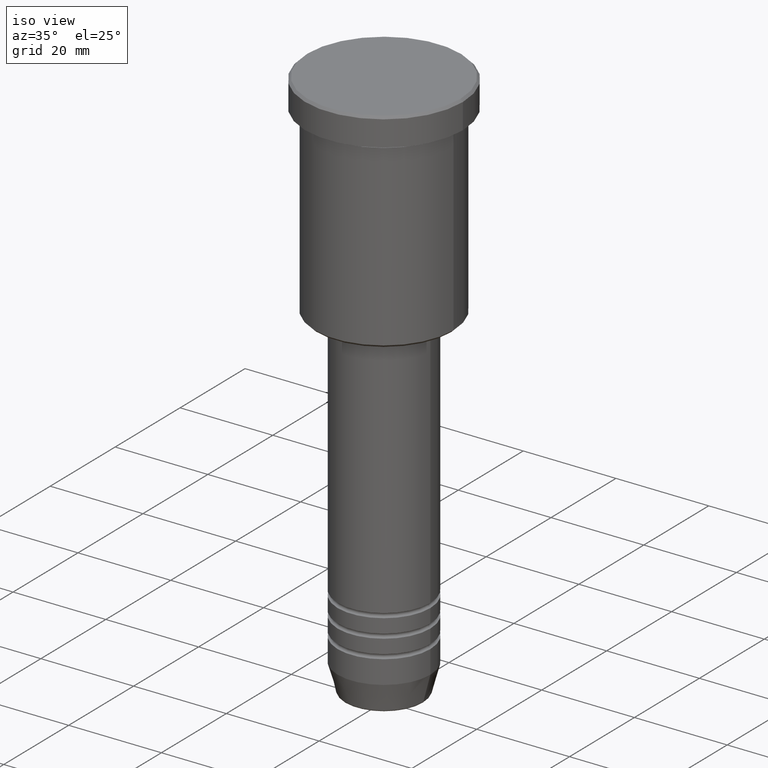
[diagram: clean part render]
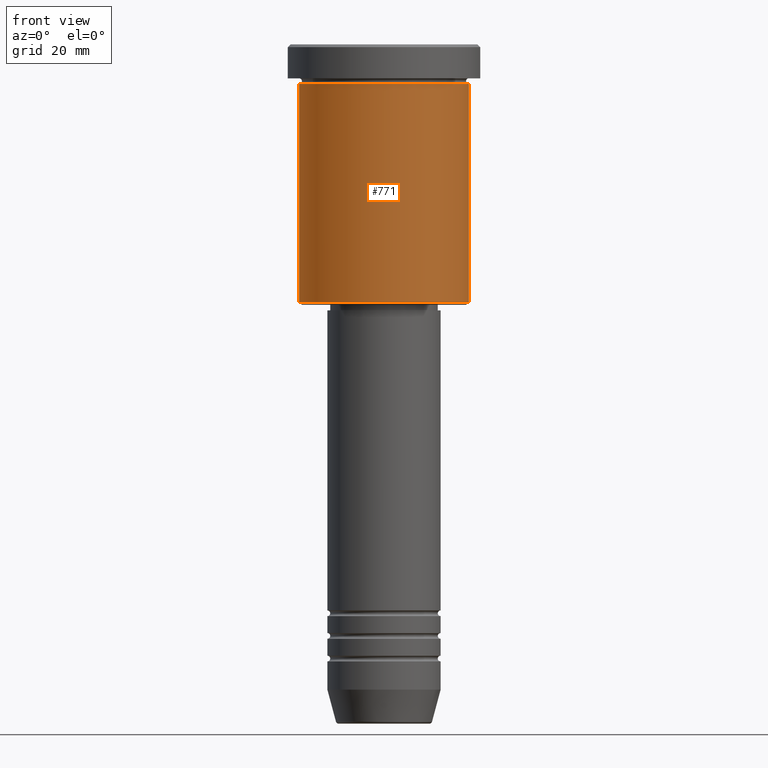
[diagram: tour spotlight — one face highlighted and labeled with its STEP entity id]
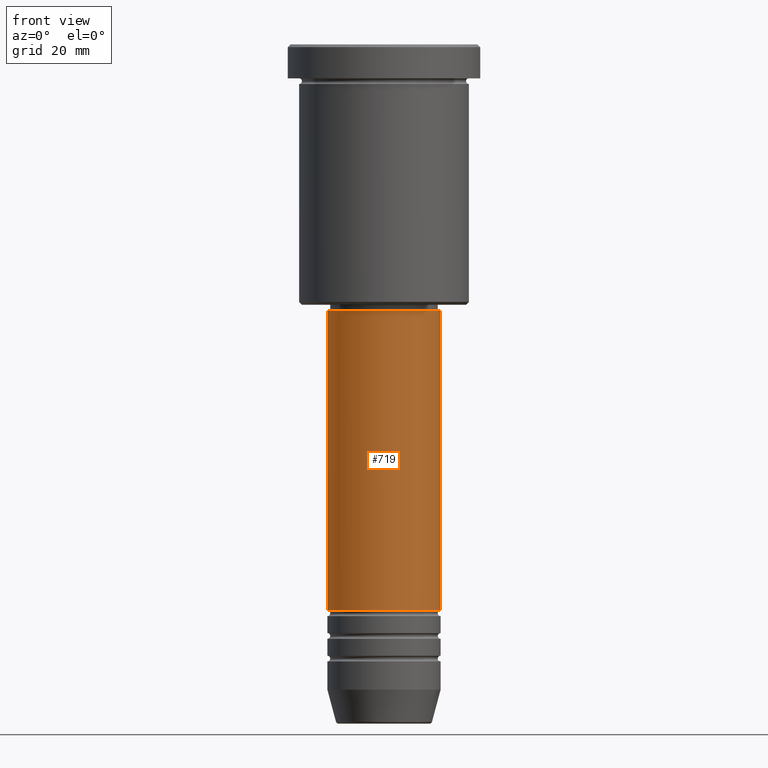
[diagram: tour spotlight — one face highlighted and labeled with its STEP entity id]
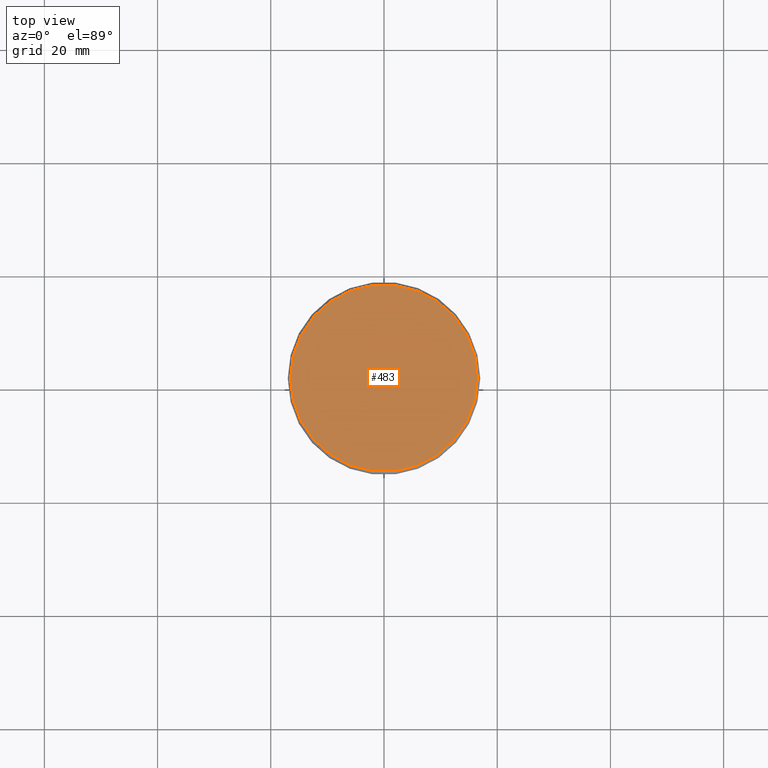
[diagram: tour spotlight — one face highlighted and labeled with its STEP entity id]
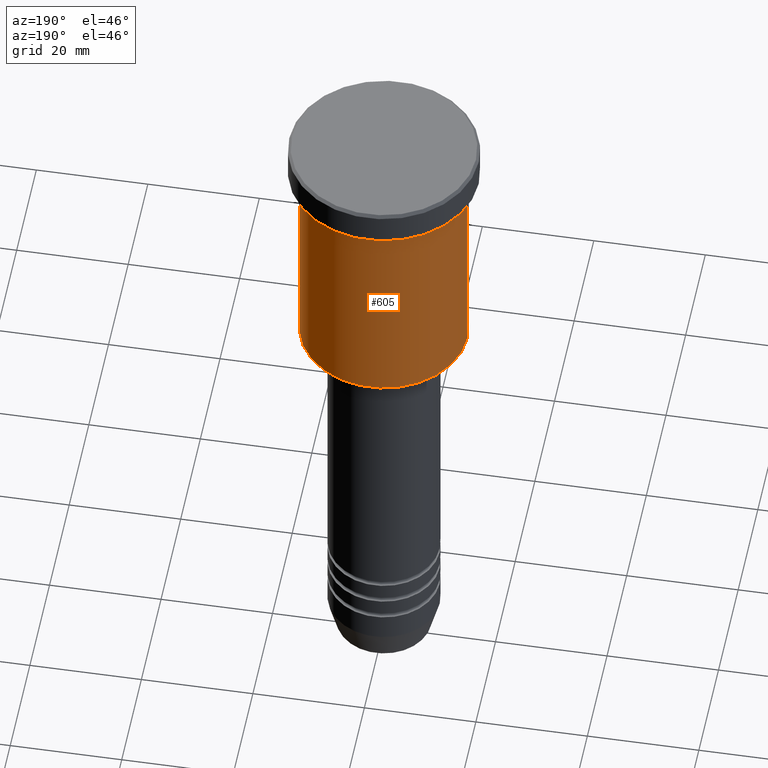
[diagram: tour spotlight — one face highlighted and labeled with its STEP entity id]
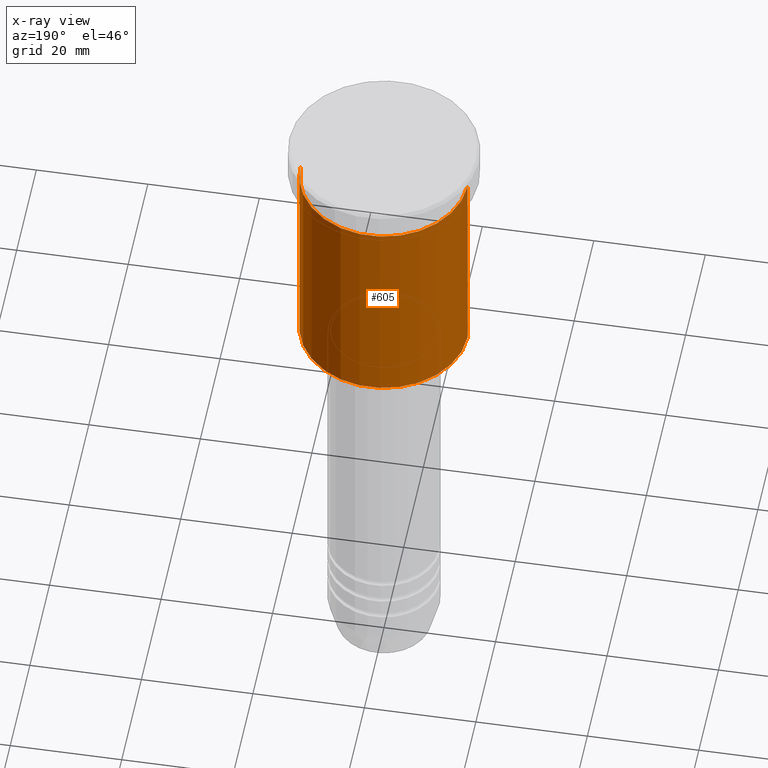
[diagram: x-ray of the same camera — body ghosted, this tour face saturated]
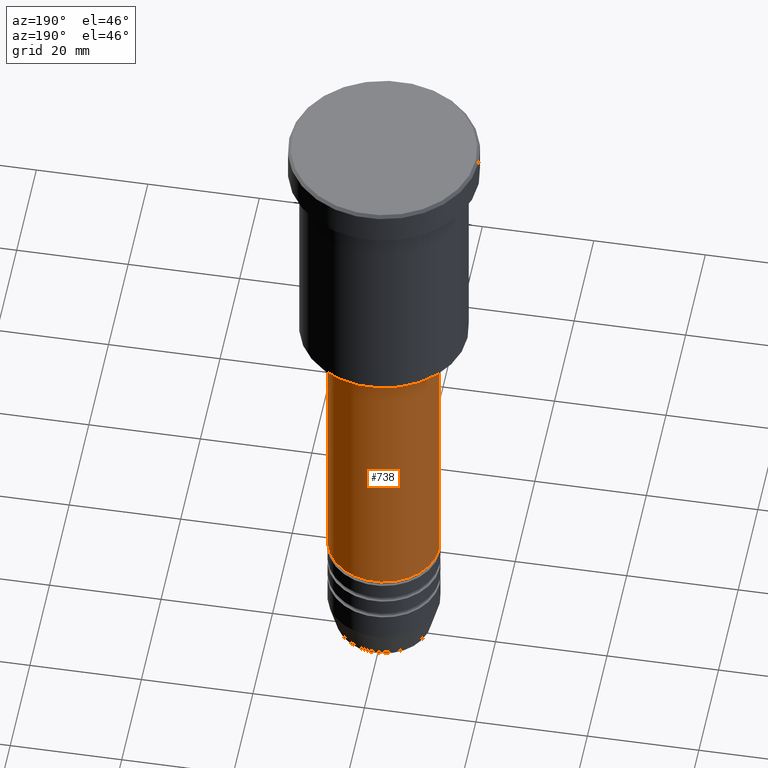
[diagram: tour spotlight — one face highlighted and labeled with its STEP entity id]
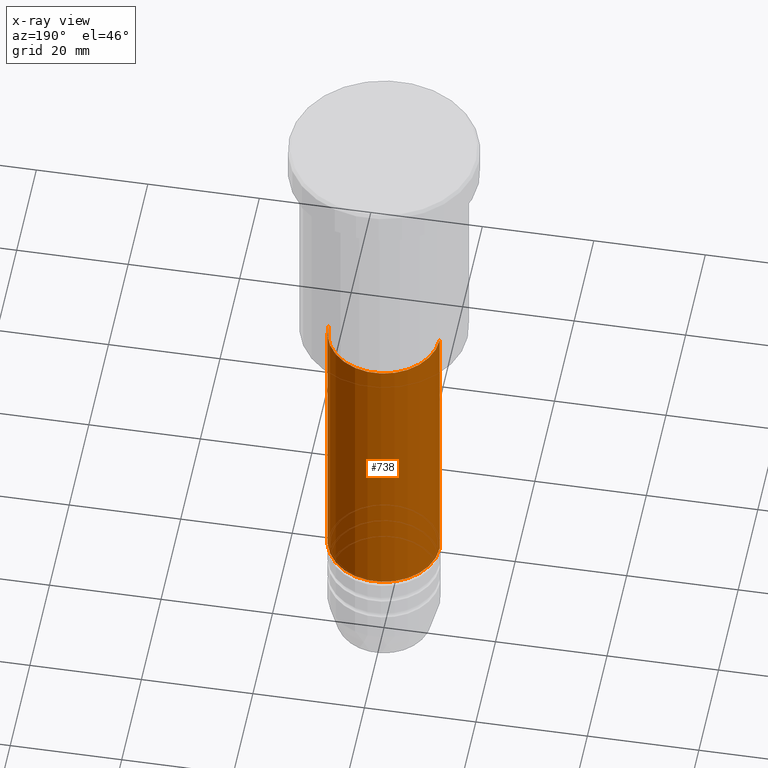
[diagram: x-ray of the same camera — body ghosted, this tour face saturated]
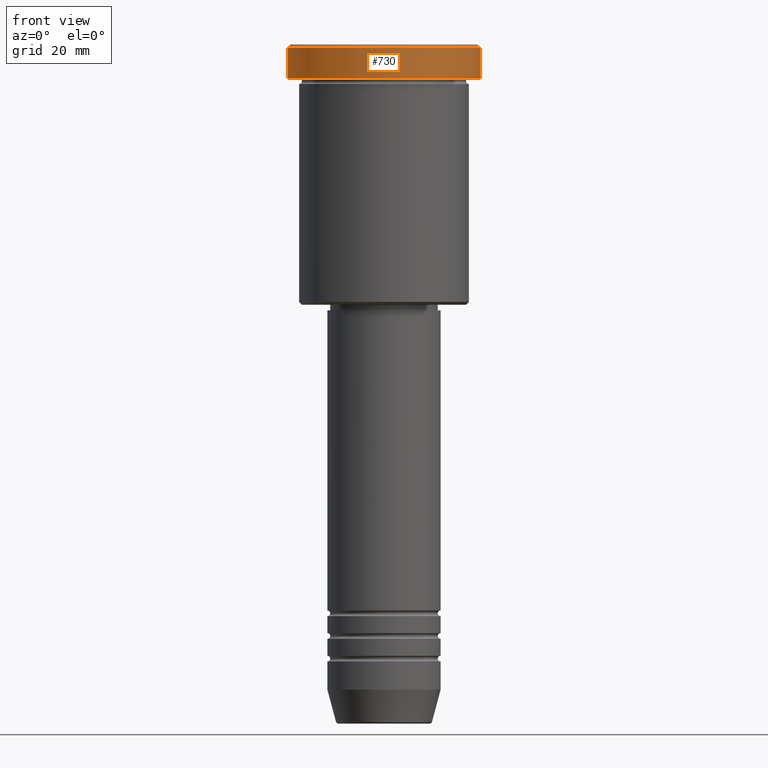
[diagram: tour spotlight — one face highlighted and labeled with its STEP entity id]
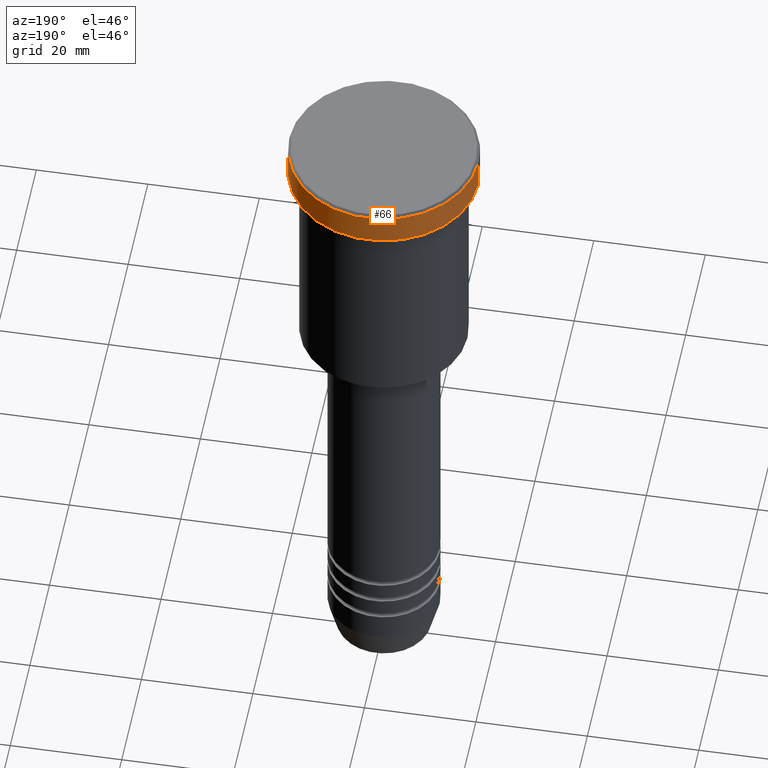
[diagram: tour spotlight — one face highlighted and labeled with its STEP entity id]
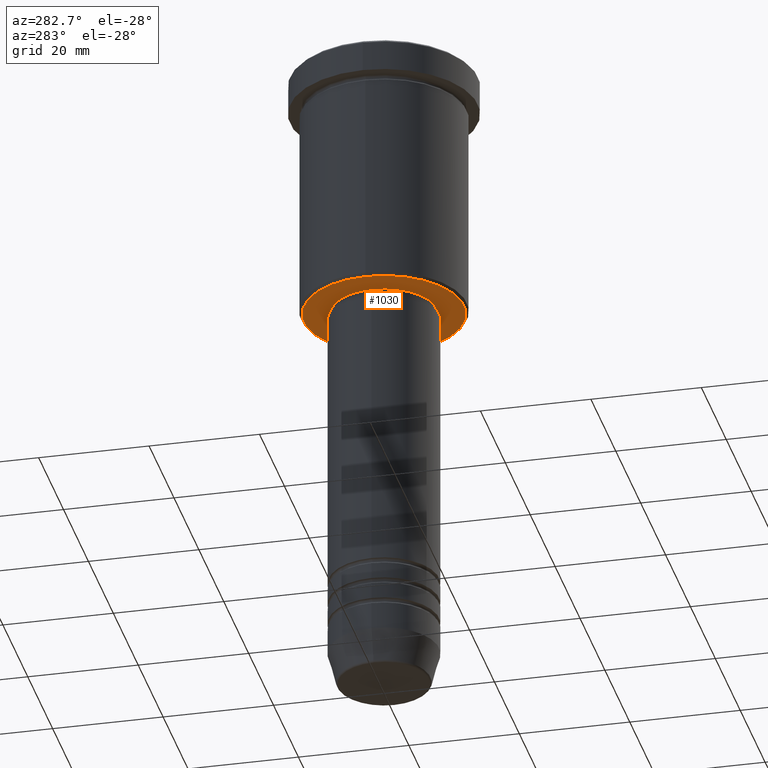
[diagram: tour spotlight — one face highlighted and labeled with its STEP entity id]
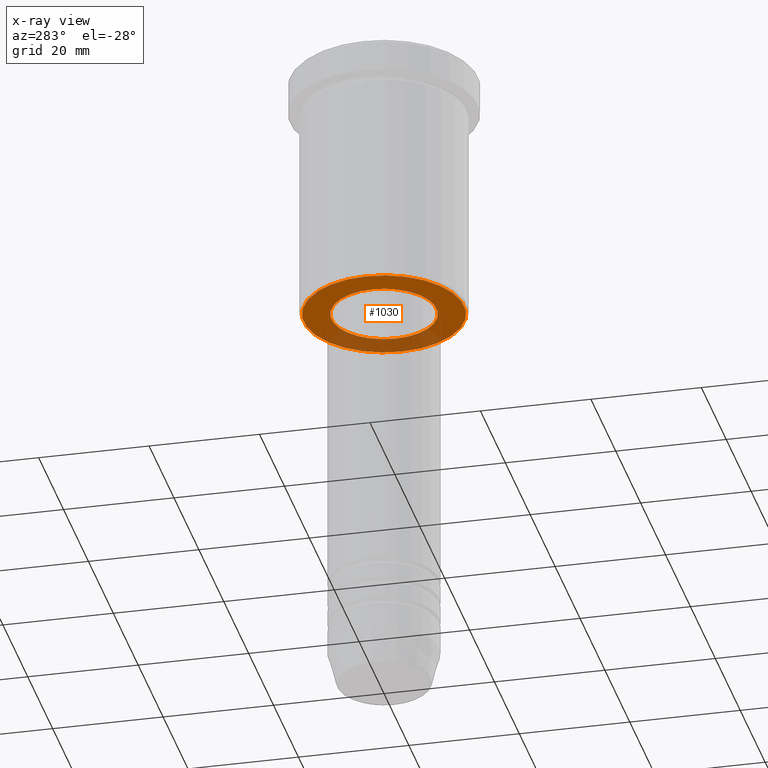
[diagram: x-ray of the same camera — body ghosted, this tour face saturated]
A machine part: a face-by-face anatomy tour. The part has 43 B-rep faces; the first image is the clean iso view, then the 8 largest visible faces are spotlighted one at a time (largest first), each with its STEP entity span.

Face 1 — front view, entity #771. In plain terms, the highlighted cylindrical surface (partial cylindrical patch) has radius 15 mm, axis along (-0, -0, 1).
Definition (entity closure, byte-faithful):
#11 = EDGE_CURVE ( 'NONE', #887, #422, #724, .T. ) ;
#22 = VERTEX_POINT ( 'NONE', #757 ) ;
#58 = DIRECTION ( 'NONE',  ( 1.000000000000000000, 0.000000000000000000, 0.000000000000000000 ) ) ;
#185 = CARTESIAN_POINT ( 'NONE',  ( 0.000000000000000000, 0.000000000000000000, -6.999999999999995559 ) ) ;
#196 = ORIENTED_EDGE ( 'NONE', *, *, #11, .F. ) ;
#247 = CARTESIAN_POINT ( 'NONE',  ( 15.00000000000000000, 0.000000000000000000, 0.000000000000000000 ) ) ;
#311 = CIRCLE ( 'NONE', #387, 15.00000000000000000 ) ;
#313 = ORIENTED_EDGE ( 'NONE', *, *, #432, .T. ) ;
#327 = AXIS2_PLACEMENT_3D ( 'NONE', #519, #892, #58 ) ;
#387 = AXIS2_PLACEMENT_3D ( 'NONE', #824, #847, #830 ) ;
#398 = VERTEX_POINT ( 'NONE', #1111 ) ;
#408 = EDGE_LOOP ( 'NONE', ( #196, #313, #795, #1106 ) ) ;
#422 = VERTEX_POINT ( 'NONE', #1019 ) ;
#432 = EDGE_CURVE ( 'NONE', #887, #22, #311, .T. ) ;
#519 = CARTESIAN_POINT ( 'NONE',  ( 0.000000000000000000, 0.000000000000000000, 0.000000000000000000 ) ) ;
#548 = DIRECTION ( 'NONE',  ( -0.000000000000000000, -0.000000000000000000, 1.000000000000000000 ) ) ;
#694 = CIRCLE ( 'NONE', #909, 15.00000000000000000 ) ;
#699 = FACE_OUTER_BOUND ( 'NONE', #408, .T. ) ;
#724 = LINE ( 'NONE', #1014, #876 ) ;
#757 = CARTESIAN_POINT ( 'NONE',  ( 15.00000000000000000, 0.000000000000000000, -45.49999999999998579 ) ) ;
#771 = ADVANCED_FACE ( 'NONE', ( #699 ), #971, .T. ) ;
#795 = ORIENTED_EDGE ( 'NONE', *, *, #1120, .T. ) ;
#824 = CARTESIAN_POINT ( 'NONE',  ( 0.000000000000000000, 0.000000000000000000, -45.49999999999998579 ) ) ;
#830 = DIRECTION ( 'NONE',  ( -1.000000000000000000, 0.000000000000000000, 0.000000000000000000 ) ) ;
#847 = DIRECTION ( 'NONE',  ( -0.000000000000000000, -0.000000000000000000, 1.000000000000000000 ) ) ;
#876 = VECTOR ( 'NONE', #548, 1000.000000000000000 ) ;
#887 = VERTEX_POINT ( 'NONE', #993 ) ;
#892 = DIRECTION ( 'NONE',  ( -0.000000000000000000, -0.000000000000000000, 1.000000000000000000 ) ) ;
#909 = AXIS2_PLACEMENT_3D ( 'NONE', #185, #913, #1092 ) ;
#913 = DIRECTION ( 'NONE',  ( -0.000000000000000000, -0.000000000000000000, 1.000000000000000000 ) ) ;
#933 = EDGE_CURVE ( 'NONE', #422, #398, #694, .T. ) ;
#971 = CYLINDRICAL_SURFACE ( 'NONE', #327, 15.00000000000000000 ) ;
#982 = VECTOR ( 'NONE', #987, 1000.000000000000000 ) ;
#987 = DIRECTION ( 'NONE',  ( -0.000000000000000000, -0.000000000000000000, 1.000000000000000000 ) ) ;
#993 = CARTESIAN_POINT ( 'NONE',  ( -15.00000000000000000, 1.836970198721029589E-15, -45.49999999999998579 ) ) ;
#1014 = CARTESIAN_POINT ( 'NONE',  ( -15.00000000000000000, 1.836970198721029589E-15, 0.000000000000000000 ) ) ;
#1019 = CARTESIAN_POINT ( 'NONE',  ( -15.00000000000000000, 1.836970198721029589E-15, -6.999999999999995559 ) ) ;
#1092 = DIRECTION ( 'NONE',  ( 1.000000000000000000, 0.000000000000000000, 0.000000000000000000 ) ) ;
#1106 = ORIENTED_EDGE ( 'NONE', *, *, #933, .F. ) ;
#1111 = CARTESIAN_POINT ( 'NONE',  ( 15.00000000000000000, 0.000000000000000000, -6.999999999999995559 ) ) ;
#1120 = EDGE_CURVE ( 'NONE', #22, #398, #1141, .T. ) ;
#1141 = LINE ( 'NONE', #247, #982 ) ;

Face 2 — front view, entity #719. In plain terms, the highlighted cylindrical surface (partial cylindrical patch) has radius 10 mm, axis along (-0, -0, 1).
Definition (entity closure, byte-faithful):
#10 = CARTESIAN_POINT ( 'NONE',  ( 0.000000000000000000, 0.000000000000000000, -99.99999999999997158 ) ) ;
#41 = ORIENTED_EDGE ( 'NONE', *, *, #1053, .T. ) ;
#45 = DIRECTION ( 'NONE',  ( 1.000000000000000000, 0.000000000000000000, 0.000000000000000000 ) ) ;
#68 = VERTEX_POINT ( 'NONE', #310 ) ;
#147 = DIRECTION ( 'NONE',  ( 1.000000000000000000, 0.000000000000000000, 0.000000000000000000 ) ) ;
#154 = CARTESIAN_POINT ( 'NONE',  ( 0.000000000000000000, 0.000000000000000000, -47.00000000000002132 ) ) ;
#180 = CARTESIAN_POINT ( 'NONE',  ( -10.00000000000000000, 1.224646799147353256E-15, 0.000000000000000000 ) ) ;
#181 = LINE ( 'NONE', #180, #424 ) ;
#212 = VERTEX_POINT ( 'NONE', #473 ) ;
#221 = EDGE_CURVE ( 'NONE', #478, #591, #613, .T. ) ;
#282 = EDGE_LOOP ( 'NONE', ( #905, #41, #624, #576 ) ) ;
#284 = CARTESIAN_POINT ( 'NONE',  ( 10.00000000000000000, 0.000000000000000000, 0.000000000000000000 ) ) ;
#310 = CARTESIAN_POINT ( 'NONE',  ( -10.00000000000000178, 1.224646799147353454E-15, -99.99999999999997158 ) ) ;
#353 = CARTESIAN_POINT ( 'NONE',  ( -9.999999999999998224, 1.224646799147353256E-15, -47.00000000000002132 ) ) ;
#383 = DIRECTION ( 'NONE',  ( 1.000000000000000000, 0.000000000000000000, 0.000000000000000000 ) ) ;
#392 = DIRECTION ( 'NONE',  ( -0.000000000000000000, -0.000000000000000000, 1.000000000000000000 ) ) ;
#393 = EDGE_CURVE ( 'NONE', #68, #478, #181, .T. ) ;
#424 = VECTOR ( 'NONE', #446, 1000.000000000000000 ) ;
#434 = CYLINDRICAL_SURFACE ( 'NONE', #539, 10.00000000000000000 ) ;
#446 = DIRECTION ( 'NONE',  ( -0.000000000000000000, -0.000000000000000000, 1.000000000000000000 ) ) ;
#473 = CARTESIAN_POINT ( 'NONE',  ( 10.00000000000000178, 0.000000000000000000, -99.99999999999997158 ) ) ;
#478 = VERTEX_POINT ( 'NONE', #353 ) ;
#539 = AXIS2_PLACEMENT_3D ( 'NONE', #1072, #881, #45 ) ;
#564 = CIRCLE ( 'NONE', #1180, 10.00000000000000178 ) ;
#576 = ORIENTED_EDGE ( 'NONE', *, *, #221, .F. ) ;
#591 = VERTEX_POINT ( 'NONE', #879 ) ;
#613 = CIRCLE ( 'NONE', #766, 9.999999999999998224 ) ;
#624 = ORIENTED_EDGE ( 'NONE', *, *, #911, .T. ) ;
#633 = LINE ( 'NONE', #284, #814 ) ;
#644 = DIRECTION ( 'NONE',  ( -0.000000000000000000, -0.000000000000000000, 1.000000000000000000 ) ) ;
#719 = ADVANCED_FACE ( 'NONE', ( #906 ), #434, .T. ) ;
#766 = AXIS2_PLACEMENT_3D ( 'NONE', #154, #803, #147 ) ;
#803 = DIRECTION ( 'NONE',  ( -0.000000000000000000, -0.000000000000000000, 1.000000000000000000 ) ) ;
#814 = VECTOR ( 'NONE', #644, 1000.000000000000000 ) ;
#879 = CARTESIAN_POINT ( 'NONE',  ( 9.999999999999998224, 0.000000000000000000, -47.00000000000002132 ) ) ;
#881 = DIRECTION ( 'NONE',  ( -0.000000000000000000, -0.000000000000000000, 1.000000000000000000 ) ) ;
#905 = ORIENTED_EDGE ( 'NONE', *, *, #393, .F. ) ;
#906 = FACE_OUTER_BOUND ( 'NONE', #282, .T. ) ;
#911 = EDGE_CURVE ( 'NONE', #212, #591, #633, .T. ) ;
#1053 = EDGE_CURVE ( 'NONE', #68, #212, #564, .T. ) ;
#1072 = CARTESIAN_POINT ( 'NONE',  ( 0.000000000000000000, 0.000000000000000000, 0.000000000000000000 ) ) ;
#1180 = AXIS2_PLACEMENT_3D ( 'NONE', #10, #392, #383 ) ;

Face 3 — top view, entity #483. In plain terms, the highlighted planar face has unit normal (0, -0, 1).
Definition (entity closure, byte-faithful):
#1 = DIRECTION ( 'NONE',  ( -0.000000000000000000, -0.000000000000000000, 1.000000000000000000 ) ) ;
#16 = AXIS2_PLACEMENT_3D ( 'NONE', #818, #912, #733 ) ;
#33 = VERTEX_POINT ( 'NONE', #1062 ) ;
#53 = FACE_OUTER_BOUND ( 'NONE', #319, .T. ) ;
#144 = CARTESIAN_POINT ( 'NONE',  ( 0.000000000000000000, 0.000000000000000000, 0.000000000000000000 ) ) ;
#184 = EDGE_CURVE ( 'NONE', #510, #33, #271, .T. ) ;
#192 = EDGE_CURVE ( 'NONE', #33, #510, #858, .T. ) ;
#271 = CIRCLE ( 'NONE', #16, 16.50000000000001421 ) ;
#319 = EDGE_LOOP ( 'NONE', ( #708, #806 ) ) ;
#351 = AXIS2_PLACEMENT_3D ( 'NONE', #144, #516, #417 ) ;
#370 = AXIS2_PLACEMENT_3D ( 'NONE', #625, #1, #826 ) ;
#417 = DIRECTION ( 'NONE',  ( 1.000000000000000000, 0.000000000000000000, 0.000000000000000000 ) ) ;
#483 = ADVANCED_FACE ( 'NONE', ( #53 ), #968, .T. ) ;
#510 = VERTEX_POINT ( 'NONE', #659 ) ;
#516 = DIRECTION ( 'NONE',  ( 0.000000000000000000, -0.000000000000000000, 1.000000000000000000 ) ) ;
#625 = CARTESIAN_POINT ( 'NONE',  ( 0.000000000000000000, 0.000000000000000000, 0.000000000000000000 ) ) ;
#659 = CARTESIAN_POINT ( 'NONE',  ( 16.50000000000001421, 2.051283388571817281E-15, 0.000000000000000000 ) ) ;
#708 = ORIENTED_EDGE ( 'NONE', *, *, #192, .T. ) ;
#733 = DIRECTION ( 'NONE',  ( 1.000000000000000000, 0.000000000000000000, 0.000000000000000000 ) ) ;
#806 = ORIENTED_EDGE ( 'NONE', *, *, #184, .T. ) ;
#818 = CARTESIAN_POINT ( 'NONE',  ( 0.000000000000000000, 0.000000000000000000, 0.000000000000000000 ) ) ;
#826 = DIRECTION ( 'NONE',  ( 1.000000000000000000, 0.000000000000000000, 0.000000000000000000 ) ) ;
#858 = CIRCLE ( 'NONE', #370, 16.50000000000001421 ) ;
#912 = DIRECTION ( 'NONE',  ( -0.000000000000000000, -0.000000000000000000, 1.000000000000000000 ) ) ;
#968 = PLANE ( 'NONE',  #351 ) ;
#1062 = CARTESIAN_POINT ( 'NONE',  ( -16.50000000000001421, 0.000000000000000000, 0.000000000000000000 ) ) ;

Face 4 — auxiliary view, entity #605. An x-ray twin of the same camera follows (body ghosted, this face saturated) — the face is partly hidden behind the body. In plain terms, the highlighted cylindrical surface (partial cylindrical patch) has radius 15 mm, axis along (-0, -0, 1).
Definition (entity closure, byte-faithful):
#11 = EDGE_CURVE ( 'NONE', #887, #422, #724, .T. ) ;
#22 = VERTEX_POINT ( 'NONE', #757 ) ;
#37 = AXIS2_PLACEMENT_3D ( 'NONE', #122, #870, #579 ) ;
#57 = ORIENTED_EDGE ( 'NONE', *, *, #557, .T. ) ;
#122 = CARTESIAN_POINT ( 'NONE',  ( 0.000000000000000000, 0.000000000000000000, -45.49999999999998579 ) ) ;
#247 = CARTESIAN_POINT ( 'NONE',  ( 15.00000000000000000, 0.000000000000000000, 0.000000000000000000 ) ) ;
#300 = ORIENTED_EDGE ( 'NONE', *, *, #645, .F. ) ;
#340 = ORIENTED_EDGE ( 'NONE', *, *, #11, .T. ) ;
#384 = AXIS2_PLACEMENT_3D ( 'NONE', #1073, #704, #689 ) ;
#398 = VERTEX_POINT ( 'NONE', #1111 ) ;
#422 = VERTEX_POINT ( 'NONE', #1019 ) ;
#439 = CIRCLE ( 'NONE', #1001, 15.00000000000000000 ) ;
#494 = EDGE_LOOP ( 'NONE', ( #57, #340, #300, #1046 ) ) ;
#548 = DIRECTION ( 'NONE',  ( -0.000000000000000000, -0.000000000000000000, 1.000000000000000000 ) ) ;
#554 = CIRCLE ( 'NONE', #37, 15.00000000000000000 ) ;
#557 = EDGE_CURVE ( 'NONE', #22, #887, #554, .T. ) ;
#579 = DIRECTION ( 'NONE',  ( -1.000000000000000000, 0.000000000000000000, 0.000000000000000000 ) ) ;
#605 = ADVANCED_FACE ( 'NONE', ( #783 ), #700, .T. ) ;
#614 = CARTESIAN_POINT ( 'NONE',  ( 0.000000000000000000, 0.000000000000000000, -6.999999999999995559 ) ) ;
#645 = EDGE_CURVE ( 'NONE', #398, #422, #439, .T. ) ;
#689 = DIRECTION ( 'NONE',  ( 1.000000000000000000, 0.000000000000000000, 0.000000000000000000 ) ) ;
#700 = CYLINDRICAL_SURFACE ( 'NONE', #384, 15.00000000000000000 ) ;
#704 = DIRECTION ( 'NONE',  ( -0.000000000000000000, -0.000000000000000000, 1.000000000000000000 ) ) ;
#724 = LINE ( 'NONE', #1014, #876 ) ;
#757 = CARTESIAN_POINT ( 'NONE',  ( 15.00000000000000000, 0.000000000000000000, -45.49999999999998579 ) ) ;
#783 = FACE_OUTER_BOUND ( 'NONE', #494, .T. ) ;
#870 = DIRECTION ( 'NONE',  ( -0.000000000000000000, -0.000000000000000000, 1.000000000000000000 ) ) ;
#876 = VECTOR ( 'NONE', #548, 1000.000000000000000 ) ;
#887 = VERTEX_POINT ( 'NONE', #993 ) ;
#964 = DIRECTION ( 'NONE',  ( 1.000000000000000000, 0.000000000000000000, 0.000000000000000000 ) ) ;
#982 = VECTOR ( 'NONE', #987, 1000.000000000000000 ) ;
#987 = DIRECTION ( 'NONE',  ( -0.000000000000000000, -0.000000000000000000, 1.000000000000000000 ) ) ;
#993 = CARTESIAN_POINT ( 'NONE',  ( -15.00000000000000000, 1.836970198721029589E-15, -45.49999999999998579 ) ) ;
#1001 = AXIS2_PLACEMENT_3D ( 'NONE', #614, #1056, #964 ) ;
#1014 = CARTESIAN_POINT ( 'NONE',  ( -15.00000000000000000, 1.836970198721029589E-15, 0.000000000000000000 ) ) ;
#1019 = CARTESIAN_POINT ( 'NONE',  ( -15.00000000000000000, 1.836970198721029589E-15, -6.999999999999995559 ) ) ;
#1046 = ORIENTED_EDGE ( 'NONE', *, *, #1120, .F. ) ;
#1056 = DIRECTION ( 'NONE',  ( -0.000000000000000000, -0.000000000000000000, 1.000000000000000000 ) ) ;
#1073 = CARTESIAN_POINT ( 'NONE',  ( 0.000000000000000000, 0.000000000000000000, 0.000000000000000000 ) ) ;
#1111 = CARTESIAN_POINT ( 'NONE',  ( 15.00000000000000000, 0.000000000000000000, -6.999999999999995559 ) ) ;
#1120 = EDGE_CURVE ( 'NONE', #22, #398, #1141, .T. ) ;
#1141 = LINE ( 'NONE', #247, #982 ) ;

Face 5 — auxiliary view, entity #738. An x-ray twin of the same camera follows (body ghosted, this face saturated) — the face is partly hidden behind the body. In plain terms, the highlighted cylindrical surface (partial cylindrical patch) has radius 10 mm, axis along (-0, -0, 1).
Definition (entity closure, byte-faithful):
#8 = CARTESIAN_POINT ( 'NONE',  ( 0.000000000000000000, 0.000000000000000000, -47.00000000000002132 ) ) ;
#62 = AXIS2_PLACEMENT_3D ( 'NONE', #8, #381, #543 ) ;
#68 = VERTEX_POINT ( 'NONE', #310 ) ;
#110 = AXIS2_PLACEMENT_3D ( 'NONE', #1176, #466, #366 ) ;
#145 = ORIENTED_EDGE ( 'NONE', *, *, #911, .F. ) ;
#180 = CARTESIAN_POINT ( 'NONE',  ( -10.00000000000000000, 1.224646799147353256E-15, 0.000000000000000000 ) ) ;
#181 = LINE ( 'NONE', #180, #424 ) ;
#212 = VERTEX_POINT ( 'NONE', #473 ) ;
#269 = CIRCLE ( 'NONE', #110, 10.00000000000000178 ) ;
#284 = CARTESIAN_POINT ( 'NONE',  ( 10.00000000000000000, 0.000000000000000000, 0.000000000000000000 ) ) ;
#310 = CARTESIAN_POINT ( 'NONE',  ( -10.00000000000000178, 1.224646799147353454E-15, -99.99999999999997158 ) ) ;
#353 = CARTESIAN_POINT ( 'NONE',  ( -9.999999999999998224, 1.224646799147353256E-15, -47.00000000000002132 ) ) ;
#366 = DIRECTION ( 'NONE',  ( 1.000000000000000000, 0.000000000000000000, 0.000000000000000000 ) ) ;
#381 = DIRECTION ( 'NONE',  ( -0.000000000000000000, -0.000000000000000000, 1.000000000000000000 ) ) ;
#393 = EDGE_CURVE ( 'NONE', #68, #478, #181, .T. ) ;
#424 = VECTOR ( 'NONE', #446, 1000.000000000000000 ) ;
#438 = EDGE_CURVE ( 'NONE', #591, #478, #615, .T. ) ;
#446 = DIRECTION ( 'NONE',  ( -0.000000000000000000, -0.000000000000000000, 1.000000000000000000 ) ) ;
#466 = DIRECTION ( 'NONE',  ( -0.000000000000000000, -0.000000000000000000, 1.000000000000000000 ) ) ;
#473 = CARTESIAN_POINT ( 'NONE',  ( 10.00000000000000178, 0.000000000000000000, -99.99999999999997158 ) ) ;
#478 = VERTEX_POINT ( 'NONE', #353 ) ;
#485 = ORIENTED_EDGE ( 'NONE', *, *, #438, .F. ) ;
#543 = DIRECTION ( 'NONE',  ( 1.000000000000000000, 0.000000000000000000, 0.000000000000000000 ) ) ;
#591 = VERTEX_POINT ( 'NONE', #879 ) ;
#615 = CIRCLE ( 'NONE', #62, 9.999999999999998224 ) ;
#633 = LINE ( 'NONE', #284, #814 ) ;
#644 = DIRECTION ( 'NONE',  ( -0.000000000000000000, -0.000000000000000000, 1.000000000000000000 ) ) ;
#668 = ORIENTED_EDGE ( 'NONE', *, *, #850, .T. ) ;
#707 = CYLINDRICAL_SURFACE ( 'NONE', #958, 10.00000000000000000 ) ;
#738 = ADVANCED_FACE ( 'NONE', ( #780 ), #707, .T. ) ;
#767 = ORIENTED_EDGE ( 'NONE', *, *, #393, .T. ) ;
#780 = FACE_OUTER_BOUND ( 'NONE', #955, .T. ) ;
#814 = VECTOR ( 'NONE', #644, 1000.000000000000000 ) ;
#850 = EDGE_CURVE ( 'NONE', #212, #68, #269, .T. ) ;
#879 = CARTESIAN_POINT ( 'NONE',  ( 9.999999999999998224, 0.000000000000000000, -47.00000000000002132 ) ) ;
#911 = EDGE_CURVE ( 'NONE', #212, #591, #633, .T. ) ;
#955 = EDGE_LOOP ( 'NONE', ( #668, #767, #485, #145 ) ) ;
#958 = AXIS2_PLACEMENT_3D ( 'NONE', #1076, #1142, #979 ) ;
#979 = DIRECTION ( 'NONE',  ( 1.000000000000000000, 0.000000000000000000, 0.000000000000000000 ) ) ;
#1076 = CARTESIAN_POINT ( 'NONE',  ( 0.000000000000000000, 0.000000000000000000, 0.000000000000000000 ) ) ;
#1142 = DIRECTION ( 'NONE',  ( -0.000000000000000000, -0.000000000000000000, 1.000000000000000000 ) ) ;
#1176 = CARTESIAN_POINT ( 'NONE',  ( 0.000000000000000000, 0.000000000000000000, -99.99999999999997158 ) ) ;

Face 6 — front view, entity #730. In plain terms, the highlighted cylindrical surface (partial cylindrical patch) has radius 17 mm, axis along (-0, -0, 1).
Definition (entity closure, byte-faithful):
#18 = EDGE_CURVE ( 'NONE', #90, #71, #94, .T. ) ;
#40 = DIRECTION ( 'NONE',  ( 0.000000000000000000, 0.000000000000000000, -1.000000000000000000 ) ) ;
#71 = VERTEX_POINT ( 'NONE', #354 ) ;
#90 = VERTEX_POINT ( 'NONE', #105 ) ;
#94 = LINE ( 'NONE', #842, #735 ) ;
#105 = CARTESIAN_POINT ( 'NONE',  ( -17.00000000000000000, 2.081899558550500280E-15, -5.999999999999994671 ) ) ;
#143 = CARTESIAN_POINT ( 'NONE',  ( 17.00000000000000000, 0.000000000000000000, 0.000000000000000000 ) ) ;
#150 = CARTESIAN_POINT ( 'NONE',  ( 0.000000000000000000, 0.000000000000000000, 0.000000000000000000 ) ) ;
#176 = AXIS2_PLACEMENT_3D ( 'NONE', #150, #888, #321 ) ;
#274 = ORIENTED_EDGE ( 'NONE', *, *, #746, .T. ) ;
#275 = EDGE_CURVE ( 'NONE', #1080, #71, #495, .T. ) ;
#302 = ORIENTED_EDGE ( 'NONE', *, *, #660, .T. ) ;
#321 = DIRECTION ( 'NONE',  ( 1.000000000000000000, 0.000000000000000000, 0.000000000000000000 ) ) ;
#350 = AXIS2_PLACEMENT_3D ( 'NONE', #901, #414, #805 ) ;
#354 = CARTESIAN_POINT ( 'NONE',  ( -17.00000000000000000, 2.081899558550500280E-15, -0.4999999999999935052 ) ) ;
#359 = EDGE_LOOP ( 'NONE', ( #863, #274, #302, #775 ) ) ;
#400 = VECTOR ( 'NONE', #1160, 1000.000000000000000 ) ;
#414 = DIRECTION ( 'NONE',  ( -0.000000000000000000, -0.000000000000000000, 1.000000000000000000 ) ) ;
#430 = FACE_OUTER_BOUND ( 'NONE', #359, .T. ) ;
#471 = DIRECTION ( 'NONE',  ( 1.000000000000000000, 0.000000000000000000, 0.000000000000000000 ) ) ;
#495 = CIRCLE ( 'NONE', #840, 17.00000000000000000 ) ;
#501 = CARTESIAN_POINT ( 'NONE',  ( 17.00000000000000000, 0.000000000000000000, -0.4999999999999935052 ) ) ;
#502 = DIRECTION ( 'NONE',  ( -0.000000000000000000, -0.000000000000000000, 1.000000000000000000 ) ) ;
#513 = CYLINDRICAL_SURFACE ( 'NONE', #176, 17.00000000000000000 ) ;
#555 = CARTESIAN_POINT ( 'NONE',  ( 17.00000000000000000, 0.000000000000000000, -5.999999999999994671 ) ) ;
#660 = EDGE_CURVE ( 'NONE', #1049, #1080, #812, .T. ) ;
#730 = ADVANCED_FACE ( 'NONE', ( #430 ), #513, .T. ) ;
#735 = VECTOR ( 'NONE', #502, 1000.000000000000000 ) ;
#746 = EDGE_CURVE ( 'NONE', #90, #1049, #1039, .T. ) ;
#751 = CARTESIAN_POINT ( 'NONE',  ( 0.000000000000000000, 0.000000000000000000, -0.4999999999999935052 ) ) ;
#775 = ORIENTED_EDGE ( 'NONE', *, *, #275, .T. ) ;
#805 = DIRECTION ( 'NONE',  ( 1.000000000000000000, 0.000000000000000000, 0.000000000000000000 ) ) ;
#812 = LINE ( 'NONE', #143, #400 ) ;
#840 = AXIS2_PLACEMENT_3D ( 'NONE', #751, #40, #471 ) ;
#842 = CARTESIAN_POINT ( 'NONE',  ( -17.00000000000000000, 2.081899558550500280E-15, 0.000000000000000000 ) ) ;
#863 = ORIENTED_EDGE ( 'NONE', *, *, #18, .F. ) ;
#888 = DIRECTION ( 'NONE',  ( -0.000000000000000000, -0.000000000000000000, 1.000000000000000000 ) ) ;
#901 = CARTESIAN_POINT ( 'NONE',  ( 0.000000000000000000, 0.000000000000000000, -5.999999999999994671 ) ) ;
#1039 = CIRCLE ( 'NONE', #350, 17.00000000000000000 ) ;
#1049 = VERTEX_POINT ( 'NONE', #555 ) ;
#1080 = VERTEX_POINT ( 'NONE', #501 ) ;
#1160 = DIRECTION ( 'NONE',  ( -0.000000000000000000, -0.000000000000000000, 1.000000000000000000 ) ) ;

Face 7 — auxiliary view, entity #66. In plain terms, the highlighted cylindrical surface (partial cylindrical patch) has radius 17 mm, axis along (-0, -0, 1).
Definition (entity closure, byte-faithful):
#18 = EDGE_CURVE ( 'NONE', #90, #71, #94, .T. ) ;
#28 = DIRECTION ( 'NONE',  ( 1.000000000000000000, 0.000000000000000000, 0.000000000000000000 ) ) ;
#66 = ADVANCED_FACE ( 'NONE', ( #949 ), #117, .T. ) ;
#71 = VERTEX_POINT ( 'NONE', #354 ) ;
#90 = VERTEX_POINT ( 'NONE', #105 ) ;
#94 = LINE ( 'NONE', #842, #735 ) ;
#105 = CARTESIAN_POINT ( 'NONE',  ( -17.00000000000000000, 2.081899558550500280E-15, -5.999999999999994671 ) ) ;
#117 = CYLINDRICAL_SURFACE ( 'NONE', #292, 17.00000000000000000 ) ;
#143 = CARTESIAN_POINT ( 'NONE',  ( 17.00000000000000000, 0.000000000000000000, 0.000000000000000000 ) ) ;
#286 = DIRECTION ( 'NONE',  ( 1.000000000000000000, 0.000000000000000000, 0.000000000000000000 ) ) ;
#291 = AXIS2_PLACEMENT_3D ( 'NONE', #873, #413, #611 ) ;
#292 = AXIS2_PLACEMENT_3D ( 'NONE', #1129, #487, #28 ) ;
#346 = EDGE_CURVE ( 'NONE', #1049, #90, #461, .T. ) ;
#354 = CARTESIAN_POINT ( 'NONE',  ( -17.00000000000000000, 2.081899558550500280E-15, -0.4999999999999935052 ) ) ;
#397 = EDGE_LOOP ( 'NONE', ( #1172, #809, #1114, #1168 ) ) ;
#400 = VECTOR ( 'NONE', #1160, 1000.000000000000000 ) ;
#413 = DIRECTION ( 'NONE',  ( 0.000000000000000000, 0.000000000000000000, -1.000000000000000000 ) ) ;
#461 = CIRCLE ( 'NONE', #1103, 17.00000000000000000 ) ;
#487 = DIRECTION ( 'NONE',  ( -0.000000000000000000, -0.000000000000000000, 1.000000000000000000 ) ) ;
#501 = CARTESIAN_POINT ( 'NONE',  ( 17.00000000000000000, 0.000000000000000000, -0.4999999999999935052 ) ) ;
#502 = DIRECTION ( 'NONE',  ( -0.000000000000000000, -0.000000000000000000, 1.000000000000000000 ) ) ;
#508 = CARTESIAN_POINT ( 'NONE',  ( 0.000000000000000000, 0.000000000000000000, -5.999999999999994671 ) ) ;
#555 = CARTESIAN_POINT ( 'NONE',  ( 17.00000000000000000, 0.000000000000000000, -5.999999999999994671 ) ) ;
#611 = DIRECTION ( 'NONE',  ( 1.000000000000000000, 0.000000000000000000, 0.000000000000000000 ) ) ;
#660 = EDGE_CURVE ( 'NONE', #1049, #1080, #812, .T. ) ;
#670 = CIRCLE ( 'NONE', #291, 17.00000000000000000 ) ;
#735 = VECTOR ( 'NONE', #502, 1000.000000000000000 ) ;
#809 = ORIENTED_EDGE ( 'NONE', *, *, #18, .T. ) ;
#812 = LINE ( 'NONE', #143, #400 ) ;
#842 = CARTESIAN_POINT ( 'NONE',  ( -17.00000000000000000, 2.081899558550500280E-15, 0.000000000000000000 ) ) ;
#873 = CARTESIAN_POINT ( 'NONE',  ( 0.000000000000000000, 0.000000000000000000, -0.4999999999999935052 ) ) ;
#949 = FACE_OUTER_BOUND ( 'NONE', #397, .T. ) ;
#967 = DIRECTION ( 'NONE',  ( -0.000000000000000000, -0.000000000000000000, 1.000000000000000000 ) ) ;
#1049 = VERTEX_POINT ( 'NONE', #555 ) ;
#1080 = VERTEX_POINT ( 'NONE', #501 ) ;
#1094 = EDGE_CURVE ( 'NONE', #71, #1080, #670, .T. ) ;
#1103 = AXIS2_PLACEMENT_3D ( 'NONE', #508, #967, #286 ) ;
#1114 = ORIENTED_EDGE ( 'NONE', *, *, #1094, .T. ) ;
#1129 = CARTESIAN_POINT ( 'NONE',  ( 0.000000000000000000, 0.000000000000000000, 0.000000000000000000 ) ) ;
#1160 = DIRECTION ( 'NONE',  ( -0.000000000000000000, -0.000000000000000000, 1.000000000000000000 ) ) ;
#1168 = ORIENTED_EDGE ( 'NONE', *, *, #660, .F. ) ;
#1172 = ORIENTED_EDGE ( 'NONE', *, *, #346, .T. ) ;

Face 8 — auxiliary view, entity #1030. An x-ray twin of the same camera follows (body ghosted, this face saturated) — the face is partly hidden behind the body. In plain terms, the highlighted planar face has unit normal (0, 0, -1).
Definition (entity closure, byte-faithful):
#51 = EDGE_CURVE ( 'NONE', #740, #844, #1008, .T. ) ;
#69 = CARTESIAN_POINT ( 'NONE',  ( 0.000000000000000000, 0.000000000000000000, -46.00000000000000711 ) ) ;
#86 = DIRECTION ( 'NONE',  ( 1.000000000000000000, 0.000000000000000000, 0.000000000000000000 ) ) ;
#125 = EDGE_LOOP ( 'NONE', ( #860, #316 ) ) ;
#140 = EDGE_CURVE ( 'NONE', #149, #617, #1147, .T. ) ;
#149 = VERTEX_POINT ( 'NONE', #416 ) ;
#151 = CARTESIAN_POINT ( 'NONE',  ( 0.000000000000000000, 0.000000000000000000, -46.00000000000000711 ) ) ;
#155 = CARTESIAN_POINT ( 'NONE',  ( 14.49999999999998401, 0.000000000000000000, -46.00000000000000000 ) ) ;
#165 = EDGE_CURVE ( 'NONE', #617, #149, #332, .T. ) ;
#175 = CARTESIAN_POINT ( 'NONE',  ( -14.49999999999998401, 1.806354028742345013E-15, -46.00000000000000000 ) ) ;
#211 = AXIS2_PLACEMENT_3D ( 'NONE', #69, #226, #411 ) ;
#226 = DIRECTION ( 'NONE',  ( -0.000000000000000000, -0.000000000000000000, 1.000000000000000000 ) ) ;
#253 = AXIS2_PLACEMENT_3D ( 'NONE', #415, #521, #394 ) ;
#299 = DIRECTION ( 'NONE',  ( 0.000000000000000000, 0.000000000000000000, -1.000000000000000000 ) ) ;
#303 = FACE_OUTER_BOUND ( 'NONE', #125, .T. ) ;
#304 = DIRECTION ( 'NONE',  ( -1.000000000000000000, 0.000000000000000000, 0.000000000000000000 ) ) ;
#316 = ORIENTED_EDGE ( 'NONE', *, *, #547, .T. ) ;
#332 = CIRCLE ( 'NONE', #897, 9.500000000000001776 ) ;
#333 = CARTESIAN_POINT ( 'NONE',  ( 9.500000000000001776, 0.000000000000000000, -46.00000000000000711 ) ) ;
#380 = DIRECTION ( 'NONE',  ( 0.000000000000000000, 0.000000000000000000, -1.000000000000000000 ) ) ;
#394 = DIRECTION ( 'NONE',  ( -1.000000000000000000, 0.000000000000000000, 0.000000000000000000 ) ) ;
#411 = DIRECTION ( 'NONE',  ( 1.000000000000000000, 0.000000000000000000, 0.000000000000000000 ) ) ;
#415 = CARTESIAN_POINT ( 'NONE',  ( 0.000000000000000000, 0.000000000000000000, -46.00000000000000000 ) ) ;
#416 = CARTESIAN_POINT ( 'NONE',  ( -9.500000000000001776, 1.163414459189985682E-15, -46.00000000000000711 ) ) ;
#521 = DIRECTION ( 'NONE',  ( 0.000000000000000000, 0.000000000000000000, -1.000000000000000000 ) ) ;
#547 = EDGE_CURVE ( 'NONE', #844, #740, #768, .T. ) ;
#569 = DIRECTION ( 'NONE',  ( -1.000000000000000000, 0.000000000000000000, -0.000000000000000000 ) ) ;
#575 = FACE_BOUND ( 'NONE', #1108, .T. ) ;
#617 = VERTEX_POINT ( 'NONE', #333 ) ;
#632 = DIRECTION ( 'NONE',  ( -0.000000000000000000, -0.000000000000000000, 1.000000000000000000 ) ) ;
#740 = VERTEX_POINT ( 'NONE', #155 ) ;
#742 = ORIENTED_EDGE ( 'NONE', *, *, #140, .T. ) ;
#743 = PLANE ( 'NONE',  #1146 ) ;
#755 = CARTESIAN_POINT ( 'NONE',  ( 0.000000000000000000, 0.000000000000000000, -46.00000000000000000 ) ) ;
#768 = CIRCLE ( 'NONE', #253, 14.49999999999998401 ) ;
#844 = VERTEX_POINT ( 'NONE', #175 ) ;
#860 = ORIENTED_EDGE ( 'NONE', *, *, #51, .T. ) ;
#897 = AXIS2_PLACEMENT_3D ( 'NONE', #151, #632, #86 ) ;
#1008 = CIRCLE ( 'NONE', #1181, 14.49999999999998401 ) ;
#1030 = ADVANCED_FACE ( 'NONE', ( #303, #575 ), #743, .T. ) ;
#1038 = CARTESIAN_POINT ( 'NONE',  ( 0.000000000000000000, 15.00000000000000000, -46.00000000000000000 ) ) ;
#1108 = EDGE_LOOP ( 'NONE', ( #1143, #742 ) ) ;
#1143 = ORIENTED_EDGE ( 'NONE', *, *, #165, .T. ) ;
#1146 = AXIS2_PLACEMENT_3D ( 'NONE', #1038, #380, #569 ) ;
#1147 = CIRCLE ( 'NONE', #211, 9.500000000000001776 ) ;
#1181 = AXIS2_PLACEMENT_3D ( 'NONE', #755, #299, #304 ) ;